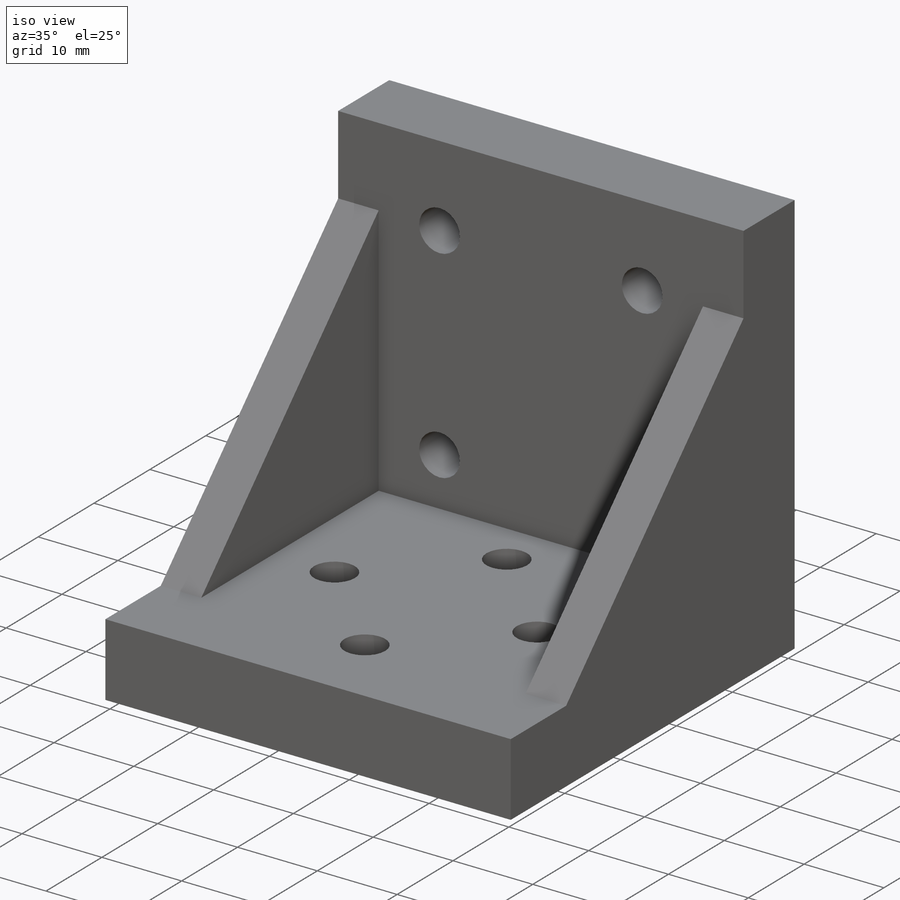
[diagram: iso view]
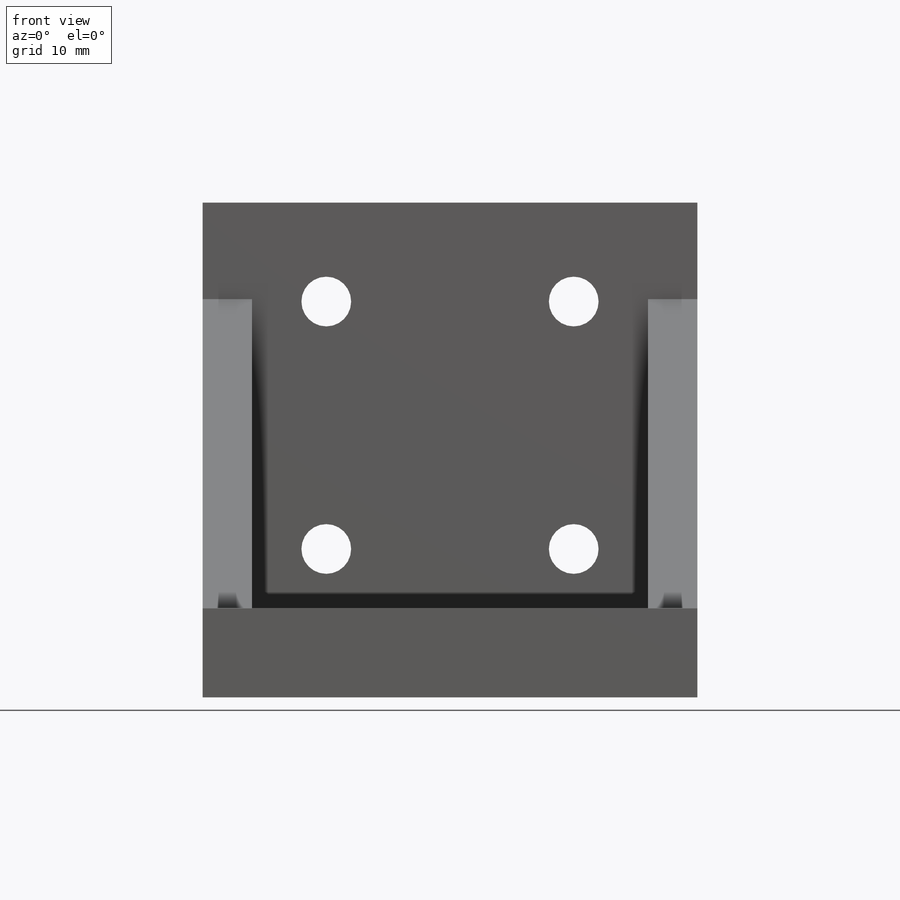
[diagram: front view]
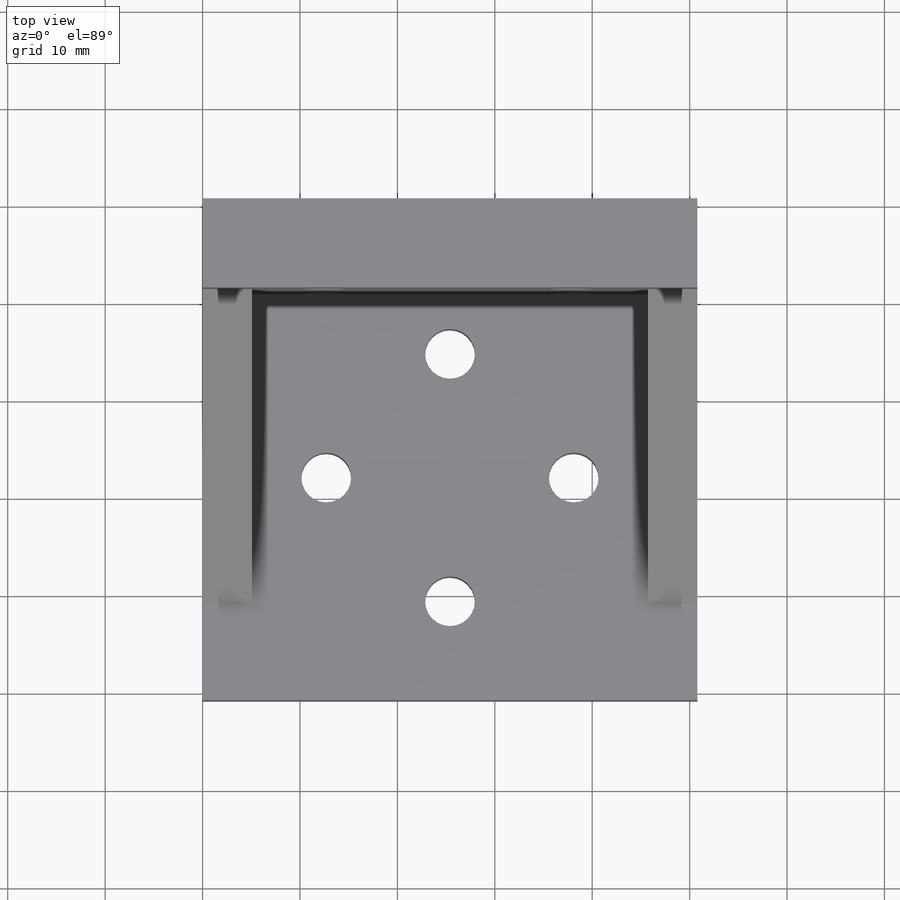
[diagram: top view]
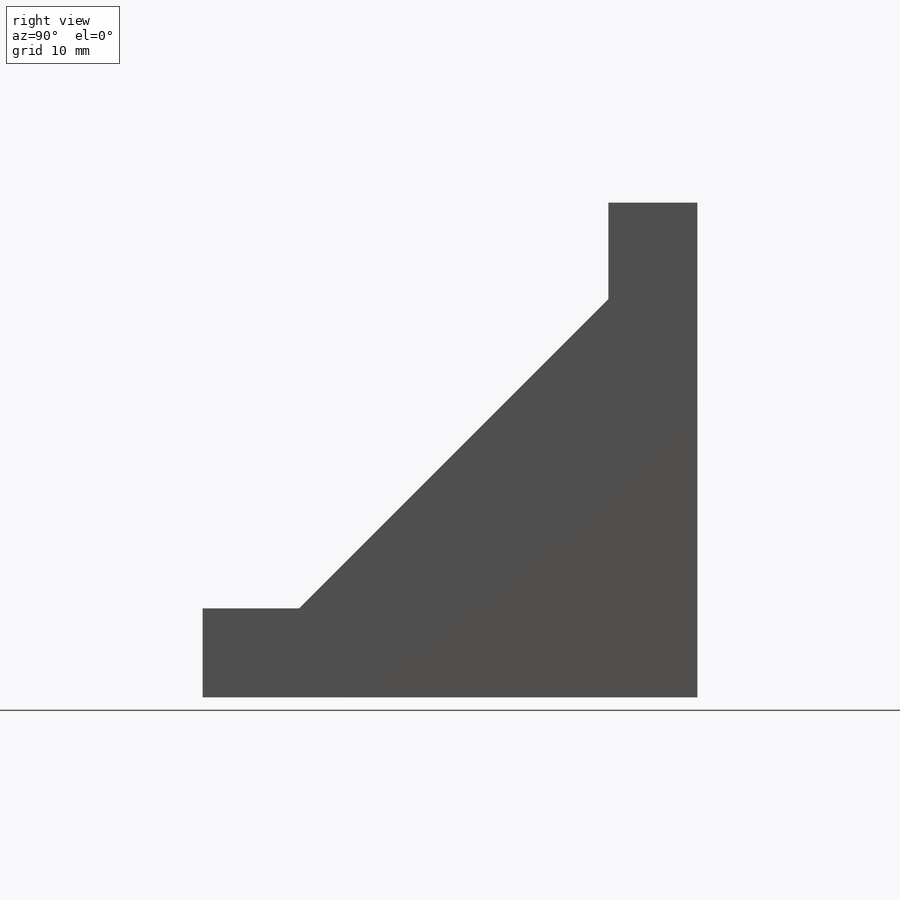
[diagram: right view]
SOLIDWORKS PART (.sldprt)
format: sldprt  version: not decoded by parser v0  size: 420,864 bytes
history: native  units: mm
features: sketch x9, thread x8, extrude x3, hole x2, material x1 (+11 scaffold rows collapsed)
feature tree (34):
  scaffold x11  (default folders/planes/origin — collapsed)
  material  "Material <not specified>"
  sketch  "Sketch1"  dims[D1=50.8mm D2=50.8mm D3=9.144mm D4=9.144mm]
  extrude  "Boss-Extrude1"  Depth=50.8mm
  sketch  "Sketch16"  dims[D1=25.4mm D2=25.4mm D3=25.4mm D4=25.4mm D5=12.7mm D6=12.7mm]
  sketch  "Sketch17"  dims[D1=25.4mm D2=25.4mm D3=25.4mm D4=25.4mm D5=12.7mm D6=12.7mm]
  hole  "1/4-20 Tapped Hole2"  Diameter=5.1054mm Depth=16.51mm
  sketch  "3DSketch3"  dims[c1.D1=12.7mm c1.D2=12.7mm c2.D1=25.4mm c2.D2=25.4mm c2.D3=12.7mm c2.D4=12.7mm c2.D5=~3.655686mm c2.D7=2.54mm c2.D6=~3.895836mm c3.D5=2.54mm c3.D7=~3.951894mm c3.D9=2.54mm c3.D8=~4.55262mm c4.D5=2.54mm]
  sketch  "Sketch18"  dims[hole-wizard template sketch: 50 standard entries collapsed; hole parameters above]
  thread  "Hole Thread6"  Diameter=9.144mm  [1 undecoded]
  thread  "Hole Thread7"  Diameter=9.144mm  [1 undecoded]
  thread  "Hole Thread8"  Diameter=9.144mm  [1 undecoded]
  thread  "Hole Thread9"  Diameter=9.144mm  [1 undecoded]
  hole  "1/4-20 Tapped Hole3"  Diameter=5.1054mm Depth=16.51mm
  sketch  "3DSketch4"  dims[c1.D1=~7.012033mm c1.D3=12.7mm c1.D2=25.4mm c2.D3=~8.693978mm c2.D9=12.7mm c2.D4=25.4mm c2.D5=12.7mm c2.D6=12.7mm c2.D7=25.4mm c2.D8=25.4mm c2.D1=15.24mm c3.D3=15.24mm]
  sketch  "Sketch19"  dims[hole-wizard template sketch: 50 standard entries collapsed; hole parameters above]
  thread  "Hole Thread10"  Diameter=9.144mm  [1 undecoded]
  thread  "Hole Thread11"  Diameter=9.144mm  [1 undecoded]
  thread  "Hole Thread12"  Diameter=9.144mm  [1 undecoded]
  thread  "Hole Thread13"  Diameter=9.144mm  [1 undecoded]
  sketch  "Sketch20"  dims[D1=31.75mm D2=31.75mm]
  extrude  "Boss-Extrude2"  Depth=5.08mm
  extrude  "Boss-Extrude3"  [1 undecoded]
  sketch  "Sketch20<2>"  dims[D1=5.08mm D19=50.8mm]
decode coverage: 21 of 22 modeling features carry decoded parameters
note: ~ marks probable driven/reference dimensions
note: 9 parameter values undecoded
note: suppression state not decoded; provenance and decode notes live in map.json
